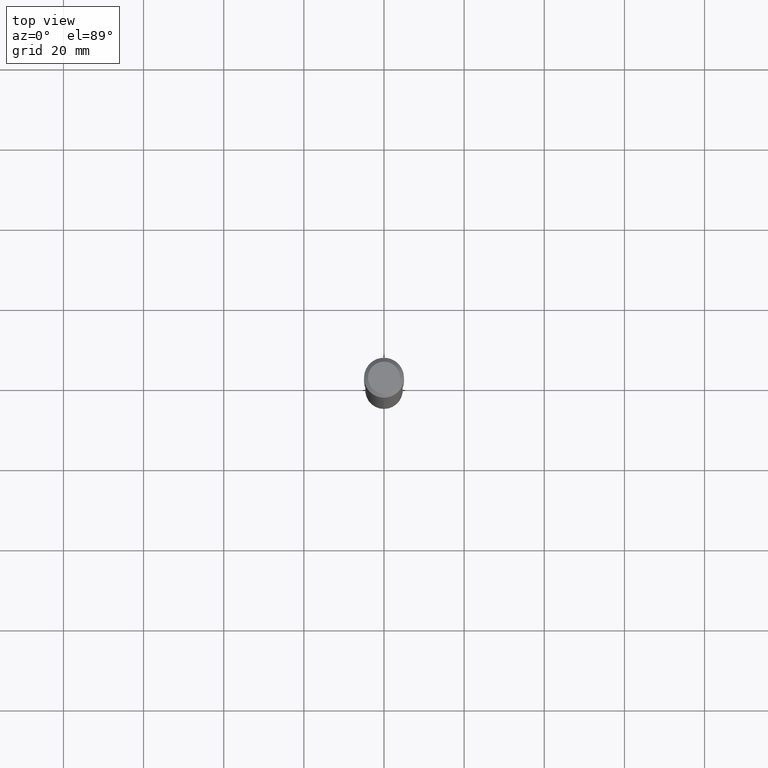
[diagram: clean part render]
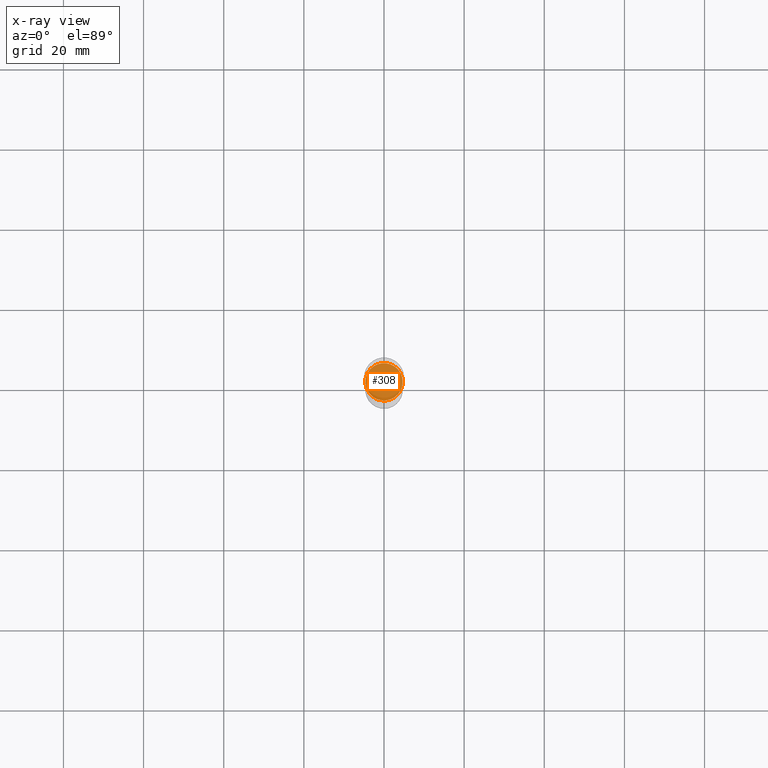
[diagram: x-ray — body ghosted, one internal face saturated and labeled with its STEP entity id]
A machine part, top view, then the same camera in x-ray: the body is ghosted and one INTERNAL B-rep face — a face not visible from any outside direction — is saturated and labeled: STEP entity #308.
In plain terms, the highlighted planar face has unit normal (-0, 0, 1).
Its self-contained STEP definition (entity closure, byte-faithful):
#23 = DIRECTION ( 'NONE',  ( 1.000000000000000000, -6.982962677686261977E-15, 0.000000000000000000 ) ) ;
#145 = ORIENTED_EDGE ( 'NONE', *, *, #146, .F. ) ;
#146 = EDGE_CURVE ( 'NONE', #235, #203, #483, .T. ) ;
#199 = CIRCLE ( 'NONE', #222, 0.1834999999999999964 ) ;
#203 = VERTEX_POINT ( 'NONE', #468 ) ;
#204 = DIRECTION ( 'NONE',  ( -2.445468806185136597E-29, 3.491481338843145583E-15, 1.000000000000000000 ) ) ;
#215 = FACE_OUTER_BOUND ( 'NONE', #462, .T. ) ;
#222 = AXIS2_PLACEMENT_3D ( 'NONE', #251, #204, #396 ) ;
#235 = VERTEX_POINT ( 'NONE', #350 ) ;
#237 = DIRECTION ( 'NONE',  ( -2.438088387897960049E-29, 3.491481338843145188E-15, 1.000000000000000000 ) ) ;
#251 = CARTESIAN_POINT ( 'NONE',  ( 5.874016072456697244E-29, -8.386538175901234466E-15, -2.401999999999999691 ) ) ;
#262 = EDGE_CURVE ( 'NONE', #203, #235, #199, .T. ) ;
#276 = PLANE ( 'NONE',  #326 ) ;
#279 = CARTESIAN_POINT ( 'NONE',  ( 5.874016072456697244E-29, -8.386538175901234466E-15, -2.401999999999999691 ) ) ;
#308 = ADVANCED_FACE ( 'NONE', ( #215 ), #276, .F. ) ;
#326 = AXIS2_PLACEMENT_3D ( 'NONE', #279, #237, #353 ) ;
#338 = ORIENTED_EDGE ( 'NONE', *, *, #262, .F. ) ;
#350 = CARTESIAN_POINT ( 'NONE',  ( -0.1834999999999999964, -7.080043028607339449E-15, -2.401999999999999691 ) ) ;
#353 = DIRECTION ( 'NONE',  ( 1.000000000000000000, -6.982962677686265922E-15, 4.876176775795935793E-29 ) ) ;
#363 = CARTESIAN_POINT ( 'NONE',  ( 5.874016072456697244E-29, -8.386538175901234466E-15, -2.401999999999999691 ) ) ;
#396 = DIRECTION ( 'NONE',  ( 1.000000000000000000, -6.982962677686261977E-15, 0.000000000000000000 ) ) ;
#419 = AXIS2_PLACEMENT_3D ( 'NONE', #363, #472, #23 ) ;
#462 = EDGE_LOOP ( 'NONE', ( #338, #145 ) ) ;
#468 = CARTESIAN_POINT ( 'NONE',  ( 0.1834999999999999964, -9.667911827256663839E-15, -2.401999999999999691 ) ) ;
#472 = DIRECTION ( 'NONE',  ( -2.445468806185136597E-29, 3.491481338843145583E-15, 1.000000000000000000 ) ) ;
#483 = CIRCLE ( 'NONE', #419, 0.1834999999999999964 ) ;